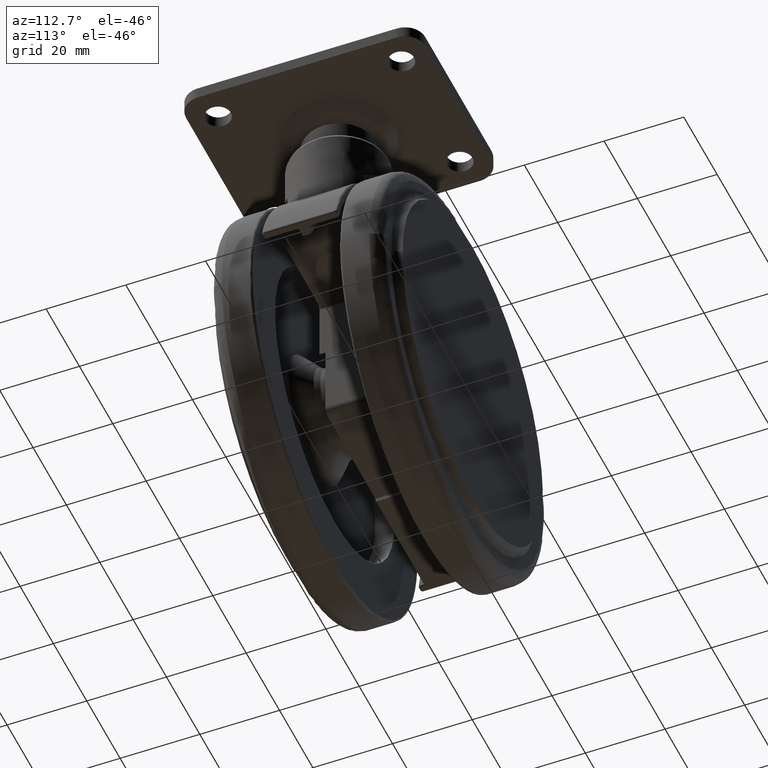
[diagram: clean part render]
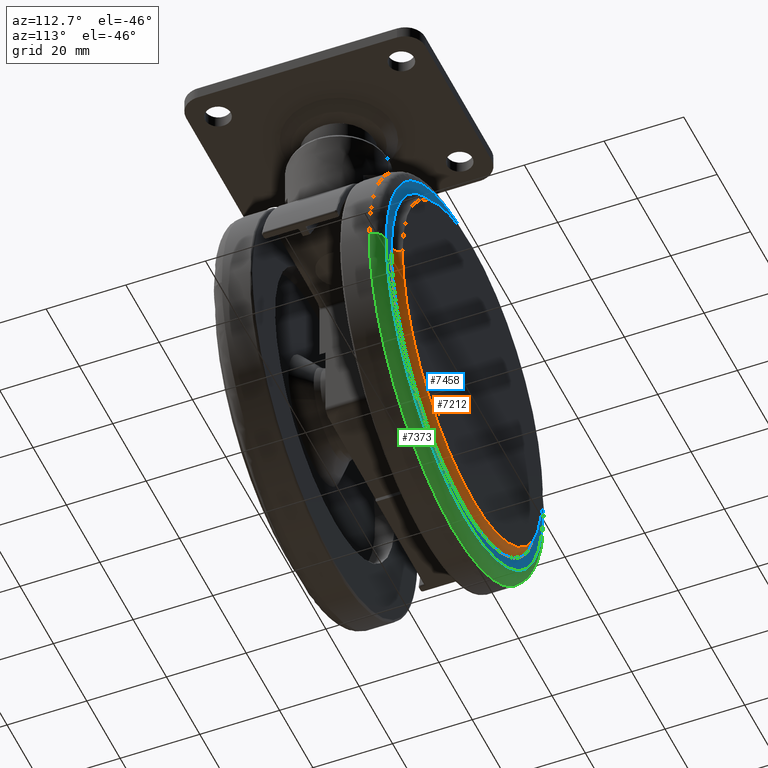
[diagram: same view with three faces highlighted in distinct colors, each labeled with its STEP entity id]
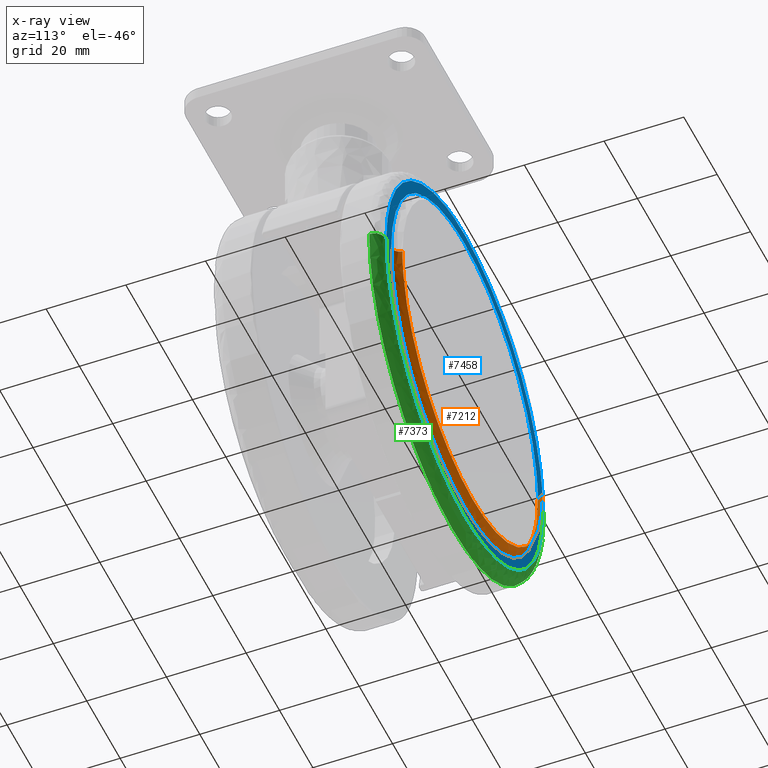
[diagram: x-ray of the same camera — body ghosted, the three highlighted faces saturated]
A machine part, auxiliary view with three faces highlighted in distinct colors.
The next image is the same camera in x-ray (body ghosted, the three faces saturated) — at least one of them is partly hidden behind the body in this view.
Their STEP definitions:

[orange] entity #7212 — the highlighted face is a freeform B-spline surface patch.
#7052=CARTESIAN_POINT('',(-65.996683856656148,23.499999998902741,-54.027773675112208));
#7053=VERTEX_POINT('',#7052);
#7054=CARTESIAN_POINT('',(-24.0,23.500000000000011,-95.500000000000114));
#7055=VERTEX_POINT('',#7054);
#7056=CARTESIAN_POINT('',(-65.996683856656148,23.499999998902744,-54.027773675112208));
#7057=CARTESIAN_POINT('',(-65.475501056145134,23.499999999451383,-95.500000000000654));
#7058=CARTESIAN_POINT('',(-24.0,23.500000000000011,-95.500000000000114));
#7066=(BOUNDED_CURVE()B_SPLINE_CURVE(2,(#7056,#7057,#7058),.UNSPECIFIED.,.F.,.U.)B_SPLINE_CURVE_WITH_KNOTS((3,3),(0.752215704078315,1.0),.UNSPECIFIED.)CURVE()GEOMETRIC_REPRESENTATION_ITEM()RATIONAL_B_SPLINE_CURVE((0.994854295643914,0.709702639984290,1.0))REPRESENTATION_ITEM(''));
#7067=EDGE_CURVE('',#7053,#7055,#7066,.T.);
#7086=CARTESIAN_POINT('',(17.996683856656130,23.499999998902730,-52.972226324887792));
#7087=VERTEX_POINT('',#7086);
#7101=CARTESIAN_POINT('',(-24.0,23.500000000000011,-95.500000000000114));
#7102=CARTESIAN_POINT('',(18.000000000047397,23.499999999458236,-95.499999999999474));
#7103=CARTESIAN_POINT('',(18.000000000095380,23.499999998909590,-53.499999999998813));
#7104=CARTESIAN_POINT('',(18.000000000095685,23.499999998906141,-53.236102744334346));
#7105=CARTESIAN_POINT('',(17.996683856656123,23.499999998902734,-52.972226324887792));
#7113=(BOUNDED_CURVE()B_SPLINE_CURVE(2,(#7101,#7102,#7103,#7104,#7105),.UNSPECIFIED.,.F.,.U.)B_SPLINE_CURVE_WITH_KNOTS((3,2,3),(0.0,0.250000000000000,0.252215704078315),.UNSPECIFIED.)CURVE()GEOMETRIC_REPRESENTATION_ITEM()RATIONAL_B_SPLINE_CURVE((1.0,0.707106781186547,1.0,0.997404141202258,0.994854295643914))REPRESENTATION_ITEM(''));
#7114=EDGE_CURVE('',#7055,#7087,#7113,.T.);
#7119=CARTESIAN_POINT('',(17.974191034213764,23.639362615198522,-51.798449733203270));
#7120=CARTESIAN_POINT('',(17.981524133227481,23.639362615198518,-52.381968494174842));
#7121=CARTESIAN_POINT('',(18.516619542168137,23.639362615198522,-94.961266747512184));
#7122=CARTESIAN_POINT('',(-23.472323602672024,23.639362615198692,-95.488943144840178));
#7123=CARTESIAN_POINT('',(-65.461266747512198,23.639362615198877,-96.016619542168129));
#7124=CARTESIAN_POINT('',(-65.996362156452818,23.639362615198880,-53.437321288833616));
#7125=CARTESIAN_POINT('',(-66.003695255466511,23.639362615198880,-52.853802527864829));
#7126=CARTESIAN_POINT('',(18.024017248688907,21.542106281647293,-51.796429877514697));
#7127=CARTESIAN_POINT('',(18.031359052589007,21.542106281647289,-52.380641314871873));
#7128=CARTESIAN_POINT('',(18.567089656108855,21.542106281647293,-95.010484086035490));
#7129=CARTESIAN_POINT('',(-23.471697214963324,21.542106281647470,-95.538786871072176));
#7130=CARTESIAN_POINT('',(-65.510484086035518,21.542106281647659,-96.067089656108848));
#7131=CARTESIAN_POINT('',(-66.046214689555313,21.542106281647655,-53.437246884948067));
#7132=CARTESIAN_POINT('',(-66.053556493455375,21.542106281647648,-52.853035447593662));
#7133=CARTESIAN_POINT('',(20.120371215382413,21.492258675661390,-51.711447854908940));
#7134=CARTESIAN_POINT('',(20.128079262700858,21.492258675661390,-52.324802483333357));
#7135=CARTESIAN_POINT('',(20.690534607197296,21.492258675661397,-97.081220623624446));
#7136=CARTESIAN_POINT('',(-23.445343008213584,21.492258675661571,-97.635877615410905));
#7137=CARTESIAN_POINT('',(-67.581220623624461,21.492258675661770,-98.190534607197307));
#7138=CARTESIAN_POINT('',(-68.143675968120903,21.492258675661766,-53.434116466909209));
#7139=CARTESIAN_POINT('',(-68.151384015439305,21.492258675661759,-52.820761838487698));
#7147=(BOUNDED_SURFACE()B_SPLINE_SURFACE(2,2,((#7119,#7126,#7133),(#7120,#7127,#7134),(#7121,#7128,#7135),(#7122,#7129,#7136),(#7123,#7130,#7137),(#7124,#7131,#7138),(#7125,#7132,#7139)),.UNSPECIFIED.,.F.,.F.,.U.)B_SPLINE_SURFACE_WITH_KNOTS((3,1,2,1,3),(3,3),(0.0,1.462649812336619,74.595140428529305,147.727631044721990,149.190280857051500),(0.0,3.523862719528250),.UNSPECIFIED.)GEOMETRIC_REPRESENTATION_ITEM()RATIONAL_B_SPLINE_SURFACE(((0.924133629814009,0.668803755609051,0.924133639694636),(0.918782868414143,0.664931361829464,0.918782878237561),(0.645894037023312,0.467439279072250,0.645894043929064),(0.913432107014277,0.661058968049878,0.913432116780486),(0.645894037023312,0.467439279072250,0.645894043929064),(0.918782868414117,0.664931361829446,0.918782878237535),(0.924133629813957,0.668803755609013,0.924133639694584)))REPRESENTATION_ITEM('')SURFACE());
#7148=ORIENTED_EDGE('',*,*,#7114,.T.);
#7149=CARTESIAN_POINT('',(19.996525944827169,21.500000000012321,-52.947094245138928));
#7150=VERTEX_POINT('',#7149);
#7151=CARTESIAN_POINT('',(17.996683856656123,23.499999998902734,-52.972226324887792));
#7152=CARTESIAN_POINT('',(18.157489801624081,21.660818641741574,-52.970205471419192));
#7153=CARTESIAN_POINT('',(19.996525944827173,21.500000000012321,-52.947094245138928));
#7161=(BOUNDED_CURVE()B_SPLINE_CURVE(2,(#7151,#7152,#7153),.UNSPECIFIED.,.F.,.U.)B_SPLINE_CURVE_WITH_KNOTS((3,3),(-1.700186989962371,-0.299813009562352),.UNSPECIFIED.)CURVE()GEOMETRIC_REPRESENTATION_ITEM()RATIONAL_B_SPLINE_CURVE((0.891550928953428,0.682940150923031,0.891550929095030))REPRESENTATION_ITEM(''));
#7162=EDGE_CURVE('',#7087,#7150,#7161,.T.);
#7163=ORIENTED_EDGE('',*,*,#7162,.T.);
#7164=CARTESIAN_POINT('',(-24.000000000000011,21.500000000000021,-97.500000000001052));
#7165=VERTEX_POINT('',#7164);
#7166=CARTESIAN_POINT('',(-24.000000000000011,21.500000000000021,-97.500000000001052));
#7167=CARTESIAN_POINT('',(19.999999999931003,21.500000000006093,-97.500000000001904));
#7168=CARTESIAN_POINT('',(19.999999999860080,21.500000000012239,-53.500000000001762));
#7169=CARTESIAN_POINT('',(19.999999999859636,21.500000000012278,-53.223536208360954));
#7170=CARTESIAN_POINT('',(19.996525944827166,21.500000000012324,-52.947094245138928));
#7178=(BOUNDED_CURVE()B_SPLINE_CURVE(2,(#7166,#7167,#7168,#7169,#7170),.UNSPECIFIED.,.F.,.U.)B_SPLINE_CURVE_WITH_KNOTS((3,2,3),(0.0,0.250000000000000,0.252215704078253),.UNSPECIFIED.)CURVE()GEOMETRIC_REPRESENTATION_ITEM()RATIONAL_B_SPLINE_CURVE((1.0,0.707106781186547,1.0,0.997404141202329,0.994854295644055))REPRESENTATION_ITEM(''));
#7179=EDGE_CURVE('',#7165,#7150,#7178,.T.);
#7180=ORIENTED_EDGE('',*,*,#7179,.F.);
#7181=CARTESIAN_POINT('',(-67.996525944827184,21.500000000012509,-54.052905754861072));
#7182=VERTEX_POINT('',#7181);
#7183=CARTESIAN_POINT('',(-67.996525944827184,21.500000000012506,-54.052905754861079));
#7184=CARTESIAN_POINT('',(-67.450524915856576,21.500000000006260,-97.500000000000142));
#7185=CARTESIAN_POINT('',(-24.000000000000011,21.500000000000021,-97.500000000001052));
#7193=(BOUNDED_CURVE()B_SPLINE_CURVE(2,(#7183,#7184,#7185),.UNSPECIFIED.,.F.,.U.)B_SPLINE_CURVE_WITH_KNOTS((3,3),(0.752215704078253,1.0),.UNSPECIFIED.)CURVE()GEOMETRIC_REPRESENTATION_ITEM()RATIONAL_B_SPLINE_CURVE((0.994854295644055,0.709702639984218,1.0))REPRESENTATION_ITEM(''));
#7194=EDGE_CURVE('',#7182,#7165,#7193,.T.);
#7195=ORIENTED_EDGE('',*,*,#7194,.F.);
#7196=CARTESIAN_POINT('',(-65.996683856656148,23.499999998902734,-54.027773675112208));
#7197=CARTESIAN_POINT('',(-66.157489801624379,21.660818641741812,-54.029794528580808));
#7198=CARTESIAN_POINT('',(-67.996525944827184,21.500000000012502,-54.052905754861079));
#7206=(BOUNDED_CURVE()B_SPLINE_CURVE(2,(#7196,#7197,#7198),.UNSPECIFIED.,.F.,.U.)B_SPLINE_CURVE_WITH_KNOTS((3,3),(-1.700186989962200,-0.299813009562348),.UNSPECIFIED.)CURVE()GEOMETRIC_REPRESENTATION_ITEM()RATIONAL_B_SPLINE_CURVE((0.891550928953377,0.682940150923056,0.891550929095031))REPRESENTATION_ITEM(''));
#7207=EDGE_CURVE('',#7053,#7182,#7206,.T.);
#7208=ORIENTED_EDGE('',*,*,#7207,.F.);
#7209=ORIENTED_EDGE('',*,*,#7067,.T.);
#7210=EDGE_LOOP('',(#7148,#7163,#7180,#7195,#7208,#7209));
#7211=FACE_OUTER_BOUND('',#7210,.T.);
#7212=ADVANCED_FACE('',(#7211),#7147,.F.);

[blue] entity #7458 — the highlighted face is a freeform B-spline surface patch.
#7149=CARTESIAN_POINT('',(19.996525944827169,21.500000000012321,-52.947094245138928));
#7150=VERTEX_POINT('',#7149);
#7164=CARTESIAN_POINT('',(-24.000000000000011,21.500000000000021,-97.500000000001052));
#7165=VERTEX_POINT('',#7164);
#7166=CARTESIAN_POINT('',(-24.000000000000011,21.500000000000021,-97.500000000001052));
#7167=CARTESIAN_POINT('',(19.999999999931003,21.500000000006093,-97.500000000001904));
#7168=CARTESIAN_POINT('',(19.999999999860080,21.500000000012239,-53.500000000001762));
#7169=CARTESIAN_POINT('',(19.999999999859636,21.500000000012278,-53.223536208360954));
#7170=CARTESIAN_POINT('',(19.996525944827166,21.500000000012324,-52.947094245138928));
#7178=(BOUNDED_CURVE()B_SPLINE_CURVE(2,(#7166,#7167,#7168,#7169,#7170),.UNSPECIFIED.,.F.,.U.)B_SPLINE_CURVE_WITH_KNOTS((3,2,3),(0.0,0.250000000000000,0.252215704078253),.UNSPECIFIED.)CURVE()GEOMETRIC_REPRESENTATION_ITEM()RATIONAL_B_SPLINE_CURVE((1.0,0.707106781186547,1.0,0.997404141202329,0.994854295644055))REPRESENTATION_ITEM(''));
#7179=EDGE_CURVE('',#7165,#7150,#7178,.T.);
#7181=CARTESIAN_POINT('',(-67.996525944827184,21.500000000012509,-54.052905754861072));
#7182=VERTEX_POINT('',#7181);
#7183=CARTESIAN_POINT('',(-67.996525944827184,21.500000000012506,-54.052905754861079));
#7184=CARTESIAN_POINT('',(-67.450524915856576,21.500000000006260,-97.500000000000142));
#7185=CARTESIAN_POINT('',(-24.000000000000011,21.500000000000021,-97.500000000001052));
#7193=(BOUNDED_CURVE()B_SPLINE_CURVE(2,(#7183,#7184,#7185),.UNSPECIFIED.,.F.,.U.)B_SPLINE_CURVE_WITH_KNOTS((3,3),(0.752215704078253,1.0),.UNSPECIFIED.)CURVE()GEOMETRIC_REPRESENTATION_ITEM()RATIONAL_B_SPLINE_CURVE((0.994854295644055,0.709702639984218,1.0))REPRESENTATION_ITEM(''));
#7194=EDGE_CURVE('',#7182,#7165,#7193,.T.);
#7245=CARTESIAN_POINT('',(-24.0,21.500000000000000,-9.499999999998954));
#7246=VERTEX_POINT('',#7245);
#7247=CARTESIAN_POINT('',(-24.0,21.500000000000000,-9.499999999998954));
#7248=CARTESIAN_POINT('',(-67.999999999931049,21.500000000006178,-9.499999999998076));
#7249=CARTESIAN_POINT('',(-67.999999999860123,21.500000000012420,-53.499999999998238));
#7250=CARTESIAN_POINT('',(-67.999999999859668,21.500000000012459,-53.776463791639038));
#7251=CARTESIAN_POINT('',(-67.996525944827184,21.500000000012506,-54.052905754861079));
#7259=(BOUNDED_CURVE()B_SPLINE_CURVE(2,(#7247,#7248,#7249,#7250,#7251),.UNSPECIFIED.,.F.,.U.)B_SPLINE_CURVE_WITH_KNOTS((3,2,3),(0.500000000000000,0.750000000000000,0.752215704078253),.UNSPECIFIED.)CURVE()GEOMETRIC_REPRESENTATION_ITEM()RATIONAL_B_SPLINE_CURVE((1.0,0.707106781186547,1.0,0.997404141202329,0.994854295644055))REPRESENTATION_ITEM(''));
#7260=EDGE_CURVE('',#7246,#7182,#7259,.T.);
#7262=CARTESIAN_POINT('',(19.996525944827166,21.500000000012324,-52.947094245138928));
#7263=CARTESIAN_POINT('',(19.450524915856558,21.500000000006160,-9.499999999999844));
#7264=CARTESIAN_POINT('',(-24.0,21.500000000000000,-9.499999999998954));
#7272=(BOUNDED_CURVE()B_SPLINE_CURVE(2,(#7262,#7263,#7264),.UNSPECIFIED.,.F.,.U.)B_SPLINE_CURVE_WITH_KNOTS((3,3),(0.252215704078253,0.500000000000000),.UNSPECIFIED.)CURVE()GEOMETRIC_REPRESENTATION_ITEM()RATIONAL_B_SPLINE_CURVE((0.994854295644055,0.709702639984218,1.0))REPRESENTATION_ITEM(''));
#7273=EDGE_CURVE('',#7150,#7246,#7272,.T.);
#7311=CARTESIAN_POINT('',(-70.996289078472643,21.500000000000099,-54.090603874536569));
#7312=VERTEX_POINT('',#7311);
#7326=CARTESIAN_POINT('',(-23.999999999999989,21.500000000000000,-100.500000000000000));
#7327=VERTEX_POINT('',#7326);
#7328=CARTESIAN_POINT('',(-70.996289078472643,21.500000000000099,-54.090603874536576));
#7329=CARTESIAN_POINT('',(-70.413060706082803,21.500000000000050,-100.500000000005610));
#7330=CARTESIAN_POINT('',(-23.999999999999989,21.500000000000000,-100.500000000000000));
#7338=(BOUNDED_CURVE()B_SPLINE_CURVE(2,(#7328,#7329,#7330),.UNSPECIFIED.,.F.,.U.)B_SPLINE_CURVE_WITH_KNOTS((3,3),(0.752215704078301,1.0),.UNSPECIFIED.)CURVE()GEOMETRIC_REPRESENTATION_ITEM()RATIONAL_B_SPLINE_CURVE((0.994854295643945,0.709702639984274,1.0))REPRESENTATION_ITEM(''));
#7339=EDGE_CURVE('',#7312,#7327,#7338,.T.);
#7341=CARTESIAN_POINT('',(22.996289078472621,21.499999999999901,-52.909396125463431));
#7342=VERTEX_POINT('',#7341);
#7343=CARTESIAN_POINT('',(-23.999999999999989,21.500000000000000,-100.500000000000000));
#7344=CARTESIAN_POINT('',(23.000000000441101,21.499999999999954,-100.499999999994460));
#7345=CARTESIAN_POINT('',(23.000000000887781,21.499999999999901,-53.499999999988830));
#7346=CARTESIAN_POINT('',(23.000000000890591,21.499999999999901,-53.204686404366093));
#7347=CARTESIAN_POINT('',(22.996289078472625,21.499999999999904,-52.909396125463431));
#7355=(BOUNDED_CURVE()B_SPLINE_CURVE(2,(#7343,#7344,#7345,#7346,#7347),.UNSPECIFIED.,.F.,.U.)B_SPLINE_CURVE_WITH_KNOTS((3,2,3),(0.0,0.250000000000000,0.252215704078301),.UNSPECIFIED.)CURVE()GEOMETRIC_REPRESENTATION_ITEM()RATIONAL_B_SPLINE_CURVE((1.0,0.707106781186548,1.0,0.997404141202274,0.994854295643945))REPRESENTATION_ITEM(''));
#7356=EDGE_CURVE('',#7327,#7342,#7355,.T.);
#7406=CARTESIAN_POINT('',(-24.0,21.500000000000000,-6.499999999999999));
#7407=VERTEX_POINT('',#7406);
#7408=CARTESIAN_POINT('',(22.996289078472625,21.499999999999904,-52.909396125463431));
#7409=CARTESIAN_POINT('',(22.413060706082785,21.499999999999954,-6.499999999994378));
#7410=CARTESIAN_POINT('',(-24.0,21.500000000000000,-6.499999999999999));
#7418=(BOUNDED_CURVE()B_SPLINE_CURVE(2,(#7408,#7409,#7410),.UNSPECIFIED.,.F.,.U.)B_SPLINE_CURVE_WITH_KNOTS((3,3),(0.252215704078301,0.500000000000000),.UNSPECIFIED.)CURVE()GEOMETRIC_REPRESENTATION_ITEM()RATIONAL_B_SPLINE_CURVE((0.994854295643945,0.709702639984274,1.0))REPRESENTATION_ITEM(''));
#7419=EDGE_CURVE('',#7342,#7407,#7418,.T.);
#7421=CARTESIAN_POINT('',(-24.0,21.500000000000000,-6.499999999999999));
#7422=CARTESIAN_POINT('',(-71.000000000441133,21.500000000000039,-6.500000000005533));
#7423=CARTESIAN_POINT('',(-71.000000000887795,21.500000000000089,-53.500000000011127));
#7424=CARTESIAN_POINT('',(-71.000000000890608,21.500000000000092,-53.795313595633885));
#7425=CARTESIAN_POINT('',(-70.996289078472643,21.500000000000099,-54.090603874536576));
#7433=(BOUNDED_CURVE()B_SPLINE_CURVE(2,(#7421,#7422,#7423,#7424,#7425),.UNSPECIFIED.,.F.,.U.)B_SPLINE_CURVE_WITH_KNOTS((3,2,3),(0.500000000000000,0.750000000000000,0.752215704078301),.UNSPECIFIED.)CURVE()GEOMETRIC_REPRESENTATION_ITEM()RATIONAL_B_SPLINE_CURVE((1.0,0.707106781186548,1.0,0.997404141202273,0.994854295643945))REPRESENTATION_ITEM(''));
#7434=EDGE_CURVE('',#7407,#7312,#7433,.T.);
#7441=CARTESIAN_POINT('',(27.691218175236170,21.500000000000249,-105.195299817809800));
#7442=CARTESIAN_POINT('',(27.691218175236170,21.500000000000249,-1.804697660913767));
#7443=CARTESIAN_POINT('',(-75.691220696313607,21.500000000000249,-105.195299817809800));
#7444=CARTESIAN_POINT('',(-75.691220696313607,21.500000000000249,-1.804697660913767));
#7445=B_SPLINE_SURFACE_WITH_KNOTS('',1,1,((#7441,#7443),(#7442,#7444)),.UNSPECIFIED.,.F.,.F.,.U.,(2,2),(2,2),(0.0,103.390602156895990),(0.0,103.382438871549790),.UNSPECIFIED.);
#7446=ORIENTED_EDGE('',*,*,#7339,.F.);
#7447=ORIENTED_EDGE('',*,*,#7434,.F.);
#7448=ORIENTED_EDGE('',*,*,#7419,.F.);
#7449=ORIENTED_EDGE('',*,*,#7356,.F.);
#7450=EDGE_LOOP('',(#7446,#7447,#7448,#7449));
#7451=FACE_OUTER_BOUND('',#7450,.T.);
#7452=ORIENTED_EDGE('',*,*,#7260,.T.);
#7453=ORIENTED_EDGE('',*,*,#7194,.T.);
#7454=ORIENTED_EDGE('',*,*,#7179,.T.);
#7455=ORIENTED_EDGE('',*,*,#7273,.T.);
#7456=EDGE_LOOP('',(#7452,#7453,#7454,#7455));
#7457=FACE_BOUND('',#7456,.T.);
#7458=ADVANCED_FACE('',(#7451,#7457),#7445,.F.);

[green] entity #7373 — the highlighted face is a freeform B-spline surface patch.
#6914=CARTESIAN_POINT('',(-60.863868859911413,18.500000000703569,-87.279508176988628));
#6915=VERTEX_POINT('',#6914);
#6921=CARTESIAN_POINT('',(-24.0,18.500000000000000,-103.500000000000000));
#6922=VERTEX_POINT('',#6921);
#6923=CARTESIAN_POINT('',(-60.863868859911506,18.500000000703562,-87.279508176988699));
#6924=CARTESIAN_POINT('',(-46.000528328499257,18.500000000292708,-103.500000000000010));
#6925=CARTESIAN_POINT('',(-24.0,18.500000000000000,-103.500000000000000));
#6933=(BOUNDED_CURVE()B_SPLINE_CURVE(2,(#6923,#6924,#6925),.UNSPECIFIED.,.F.,.U.)B_SPLINE_CURVE_WITH_KNOTS((3,3),(0.868415200059376,1.0),.UNSPECIFIED.)CURVE()GEOMETRIC_REPRESENTATION_ITEM()RATIONAL_B_SPLINE_CURVE((0.853959781951901,0.845838817593865,1.0))REPRESENTATION_ITEM(''));
#6934=EDGE_CURVE('',#6915,#6922,#6933,.T.);
#6936=CARTESIAN_POINT('',(25.996052210190740,18.500000001313829,-52.871698005827717));
#6937=VERTEX_POINT('',#6936);
#6938=CARTESIAN_POINT('',(-24.0,18.500000000000000,-103.500000000000000));
#6939=CARTESIAN_POINT('',(25.999999999999996,18.500000000648718,-103.500000000000010));
#6940=CARTESIAN_POINT('',(25.999999999999989,18.500000001305629,-53.500000000000000));
#6941=CARTESIAN_POINT('',(25.999999999999993,18.500000001309758,-53.185836600403185));
#6942=CARTESIAN_POINT('',(25.996052210190737,18.500000001313825,-52.871698005827724));
#6950=(BOUNDED_CURVE()B_SPLINE_CURVE(2,(#6938,#6939,#6940,#6941,#6942),.UNSPECIFIED.,.F.,.U.)B_SPLINE_CURVE_WITH_KNOTS((3,2,3),(0.0,0.250000000000000,0.252215704078288),.UNSPECIFIED.)CURVE()GEOMETRIC_REPRESENTATION_ITEM()RATIONAL_B_SPLINE_CURVE((1.0,0.707106781186547,1.0,0.997404141202288,0.994854295643975))REPRESENTATION_ITEM(''));
#6951=EDGE_CURVE('',#6922,#6937,#6950,.T.);
#7011=CARTESIAN_POINT('',(-73.996052210190754,18.500000001313829,-54.128301994172283));
#7012=VERTEX_POINT('',#7011);
#7028=CARTESIAN_POINT('',(-73.996052210190754,18.500000001313829,-54.128301994172276));
#7029=CARTESIAN_POINT('',(-73.756252672069252,18.500000001059945,-73.209938435094443));
#7030=CARTESIAN_POINT('',(-60.863868859911506,18.500000000703562,-87.279508176988699));
#7038=(BOUNDED_CURVE()B_SPLINE_CURVE(2,(#7028,#7029,#7030),.UNSPECIFIED.,.F.,.U.)B_SPLINE_CURVE_WITH_KNOTS((3,3),(0.752215704078288,0.868415200059376),.UNSPECIFIED.)CURVE()GEOMETRIC_REPRESENTATION_ITEM()RATIONAL_B_SPLINE_CURVE((0.994854295643975,0.861131217905826,0.853959781951901))REPRESENTATION_ITEM(''));
#7039=EDGE_CURVE('',#7012,#6915,#7038,.T.);
#7279=CARTESIAN_POINT('',(25.971228157141489,18.291388672660052,-51.474265745027168));
#7280=CARTESIAN_POINT('',(25.979958378138814,18.291388672660055,-52.168958088582620));
#7281=CARTESIAN_POINT('',(26.617001620835630,18.291388672660048,-102.860580139238950));
#7282=CARTESIAN_POINT('',(-23.371789259201655,18.291388672660261,-103.488790880037290));
#7283=CARTESIAN_POINT('',(-73.360580139238934,18.291388672660467,-104.117001620835650));
#7284=CARTESIAN_POINT('',(-73.997623381935696,18.291388672660471,-53.425379570185683));
#7285=CARTESIAN_POINT('',(-74.006353602932933,18.291388672660464,-52.730687226636476));
#7286=CARTESIAN_POINT('',(26.210998283366337,21.732611522053052,-51.464545940733281));
#7287=CARTESIAN_POINT('',(26.219770393391961,21.732611522053052,-52.162571531780216));
#7288=CARTESIAN_POINT('',(26.859870273764979,21.732611522053048,-103.097420276393420));
#7289=CARTESIAN_POINT('',(-23.368775001314223,21.732611522053251,-103.728645275079200));
#7290=CARTESIAN_POINT('',(-73.597420276393407,21.732611522053467,-104.359870273764970));
#7291=CARTESIAN_POINT('',(-74.237520156766394,21.732611522053475,-53.425021529158165));
#7292=CARTESIAN_POINT('',(-74.246292266791968,21.732611522053478,-52.726995938117497));
#7293=CARTESIAN_POINT('',(22.771256065671420,21.492738090595097,-51.603986252601331));
#7294=CARTESIAN_POINT('',(22.779427235699337,21.492738090595097,-52.254193075317765));
#7295=CARTESIAN_POINT('',(23.375676592136674,21.492738090595086,-99.699711681741107));
#7296=CARTESIAN_POINT('',(-23.412017544802204,21.492738090595289,-100.287694136938900));
#7297=CARTESIAN_POINT('',(-70.199711681741078,21.492738090595488,-100.875676592136660));
#7298=CARTESIAN_POINT('',(-70.795961038178348,21.492738090595488,-53.430157985719276));
#7299=CARTESIAN_POINT('',(-70.804132208206184,21.492738090595488,-52.779951163008668));
#7307=(BOUNDED_SURFACE()B_SPLINE_SURFACE(2,2,((#7279,#7286,#7293),(#7280,#7287,#7294),(#7281,#7288,#7295),(#7282,#7289,#7296),(#7283,#7290,#7297),(#7284,#7291,#7298),(#7285,#7292,#7299)),.UNSPECIFIED.,.F.,.F.,.U.)B_SPLINE_SURFACE_WITH_KNOTS((3,1,2,1,3),(3,3),(0.0,1.656613611187903,84.487294170095595,167.317974729003310,168.974588340176100),(0.0,5.468189979833231),.UNSPECIFIED.)GEOMETRIC_REPRESENTATION_ITEM()RATIONAL_B_SPLINE_SURFACE(((0.921146729405012,0.604479481452476,0.921146741237646),(0.915813262248004,0.600979527147157,0.915813274012127),(0.643806437242182,0.422481857576905,0.643806445512228),(0.910479795090997,0.597479572841838,0.910479806786608),(0.643806437242182,0.422481857576905,0.643806445512228),(0.915813262247956,0.600979527147125,0.915813274012078),(0.921146729404915,0.604479481452412,0.921146741237548)))REPRESENTATION_ITEM('')SURFACE());
#7308=ORIENTED_EDGE('',*,*,#6951,.F.);
#7309=ORIENTED_EDGE('',*,*,#6934,.F.);
#7310=ORIENTED_EDGE('',*,*,#7039,.F.);
#7311=CARTESIAN_POINT('',(-70.996289078472643,21.500000000000099,-54.090603874536569));
#7312=VERTEX_POINT('',#7311);
#7313=CARTESIAN_POINT('',(-73.996052210190740,18.500000001313825,-54.128301994172276));
#7314=CARTESIAN_POINT('',(-73.996052208877202,21.499999999106674,-54.128301994157326));
#7315=CARTESIAN_POINT('',(-70.996289078472643,21.500000000000096,-54.090603874536576));
#7323=(BOUNDED_CURVE()B_SPLINE_CURVE(2,(#7313,#7314,#7315),.UNSPECIFIED.,.F.,.U.)B_SPLINE_CURVE_WITH_KNOTS((3,3),(-1.725134642832776,-0.274865357023607),.UNSPECIFIED.)CURVE()GEOMETRIC_REPRESENTATION_ITEM()RATIONAL_B_SPLINE_CURVE((0.883342149492845,0.624617224262174,0.883342149544086))REPRESENTATION_ITEM(''));
#7324=EDGE_CURVE('',#7012,#7312,#7323,.T.);
#7325=ORIENTED_EDGE('',*,*,#7324,.T.);
#7326=CARTESIAN_POINT('',(-23.999999999999989,21.500000000000000,-100.500000000000000));
#7327=VERTEX_POINT('',#7326);
#7328=CARTESIAN_POINT('',(-70.996289078472643,21.500000000000099,-54.090603874536576));
#7329=CARTESIAN_POINT('',(-70.413060706082803,21.500000000000050,-100.500000000005610));
#7330=CARTESIAN_POINT('',(-23.999999999999989,21.500000000000000,-100.500000000000000));
#7338=(BOUNDED_CURVE()B_SPLINE_CURVE(2,(#7328,#7329,#7330),.UNSPECIFIED.,.F.,.U.)B_SPLINE_CURVE_WITH_KNOTS((3,3),(0.752215704078301,1.0),.UNSPECIFIED.)CURVE()GEOMETRIC_REPRESENTATION_ITEM()RATIONAL_B_SPLINE_CURVE((0.994854295643945,0.709702639984274,1.0))REPRESENTATION_ITEM(''));
#7339=EDGE_CURVE('',#7312,#7327,#7338,.T.);
#7340=ORIENTED_EDGE('',*,*,#7339,.T.);
#7341=CARTESIAN_POINT('',(22.996289078472621,21.499999999999901,-52.909396125463431));
#7342=VERTEX_POINT('',#7341);
#7343=CARTESIAN_POINT('',(-23.999999999999989,21.500000000000000,-100.500000000000000));
#7344=CARTESIAN_POINT('',(23.000000000441101,21.499999999999954,-100.499999999994460));
#7345=CARTESIAN_POINT('',(23.000000000887781,21.499999999999901,-53.499999999988830));
#7346=CARTESIAN_POINT('',(23.000000000890591,21.499999999999901,-53.204686404366093));
#7347=CARTESIAN_POINT('',(22.996289078472625,21.499999999999904,-52.909396125463431));
#7355=(BOUNDED_CURVE()B_SPLINE_CURVE(2,(#7343,#7344,#7345,#7346,#7347),.UNSPECIFIED.,.F.,.U.)B_SPLINE_CURVE_WITH_KNOTS((3,2,3),(0.0,0.250000000000000,0.252215704078301),.UNSPECIFIED.)CURVE()GEOMETRIC_REPRESENTATION_ITEM()RATIONAL_B_SPLINE_CURVE((1.0,0.707106781186548,1.0,0.997404141202274,0.994854295643945))REPRESENTATION_ITEM(''));
#7356=EDGE_CURVE('',#7327,#7342,#7355,.T.);
#7357=ORIENTED_EDGE('',*,*,#7356,.T.);
#7358=CARTESIAN_POINT('',(25.996052210190744,18.500000001313829,-52.871698005827724));
#7359=CARTESIAN_POINT('',(25.996052208876790,21.499999999106411,-52.871698005842681));
#7360=CARTESIAN_POINT('',(22.996289078472632,21.499999999999897,-52.909396125463438));
#7368=(BOUNDED_CURVE()B_SPLINE_CURVE(2,(#7358,#7359,#7360),.UNSPECIFIED.,.F.,.U.)B_SPLINE_CURVE_WITH_KNOTS((3,3),(-1.725134642832636,-0.274865357023590),.UNSPECIFIED.)CURVE()GEOMETRIC_REPRESENTATION_ITEM()RATIONAL_B_SPLINE_CURVE((0.883342149492794,0.624617224262196,0.883342149544093))REPRESENTATION_ITEM(''));
#7369=EDGE_CURVE('',#6937,#7342,#7368,.T.);
#7370=ORIENTED_EDGE('',*,*,#7369,.F.);
#7371=EDGE_LOOP('',(#7308,#7309,#7310,#7325,#7340,#7357,#7370));
#7372=FACE_OUTER_BOUND('',#7371,.T.);
#7373=ADVANCED_FACE('',(#7372),#7307,.T.);